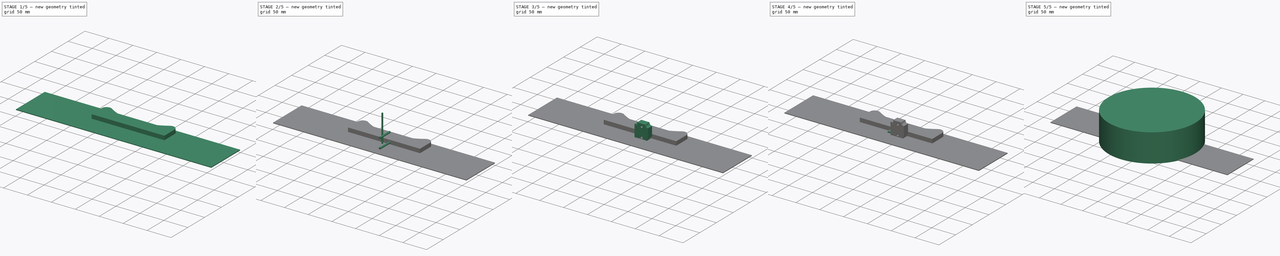
[diagram: build sequence overview — one tinted view per stage of 5, left to right]
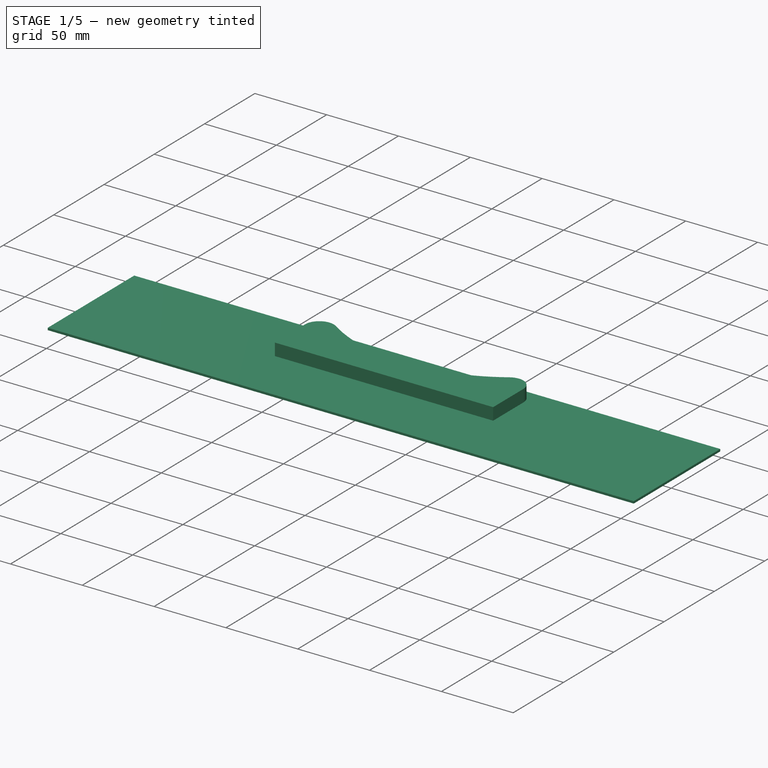
[diagram: stage 1 of 5 — iso view after this stage's code; geometry added in this stage tinted green]
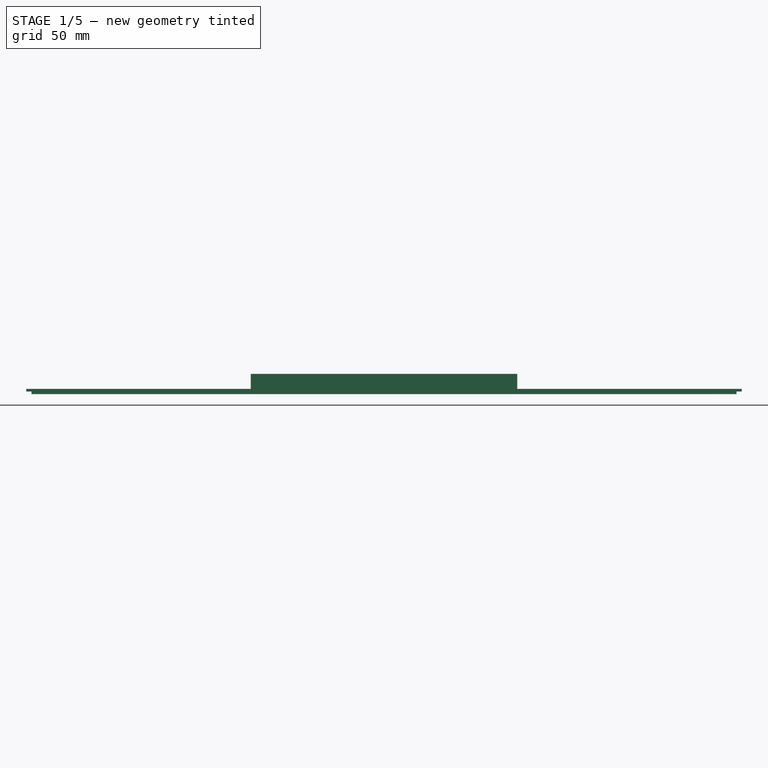
[diagram: stage 1 of 5 — front view after this stage's code; geometry added in this stage tinted green]
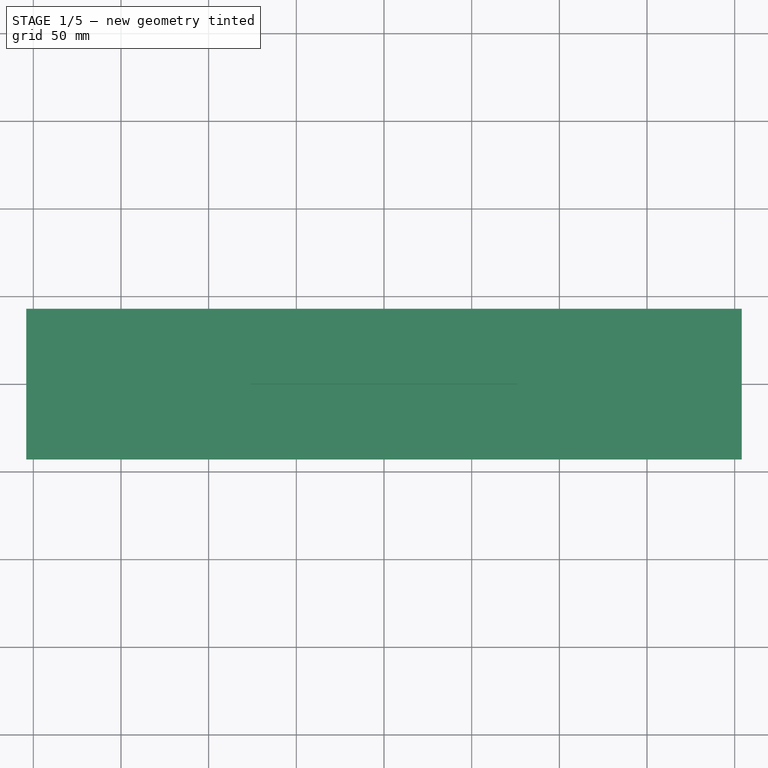
[diagram: stage 1 of 5 — top view after this stage's code; geometry added in this stage tinted green]
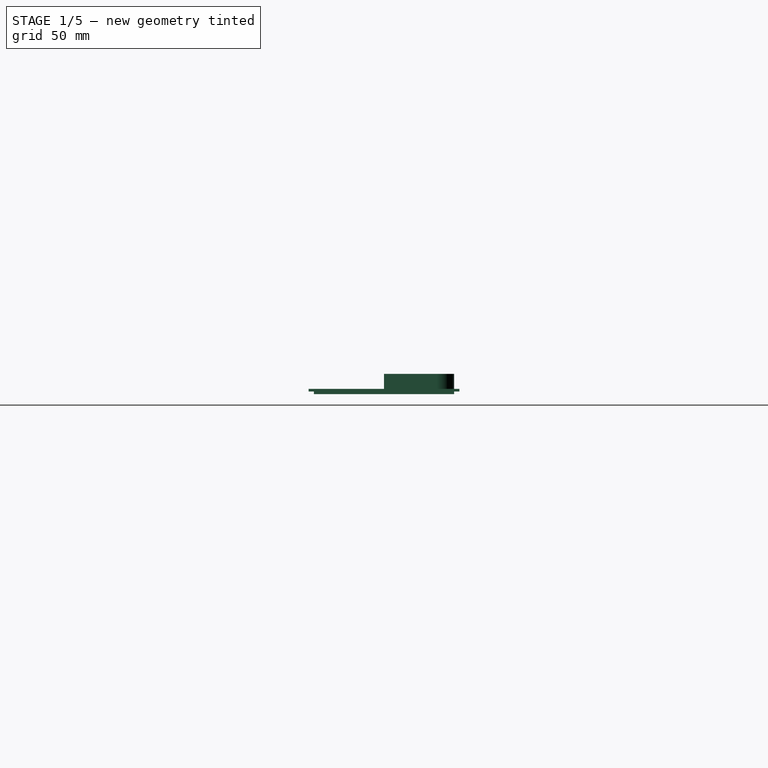
[diagram: stage 1 of 5 — right view after this stage's code; geometry added in this stage tinted green]
FCSTD DOCUMENT  (FreeCAD 0.22R37100 (Git))
Label: bizon_top2
License: All rights reserved
LicenseURL: http://en.wikipedia.org/wiki/All_rights_reserved
objects: Sketcher::SketchObject×8, PartDesign::Body×5, PartDesign::Pad×5, Part::FeaturePython×5, Part::Cylinder×3, PartDesign::AdditiveCylinder×1, PartDesign::Revolution×1, PartDesign::Mirrored×1, PartDesign::Groove×1, Part::Mirroring×1, Part::MultiFuse×1, PartDesign::Boolean×1, PartDesign::SubShapeBinder×1
note: 42 computed .brp shape members not serialized (recipe doc carries the construction recipe); baked Part::Feature solids carry a one-line shape summary decoded from their .brp

FEATURE [PartDesign::Body] Body002  label="filament_sensor"
  Group = -> [Sketch005,Pad001,Boolean]
  Origin = -> Origin002
  Tip = -> Boolean
FEATURE [Sketcher::SketchObject] Sketch007
  AttachmentSupport = -> [XY_Plane004]
  FullyConstrained = true
  MapMode = 5
  sketch-geometry (5):
    g0: LineSegment StartX=-201 StartY=-40 StartZ=0 EndX=201 EndY=-40 EndZ=0
    g1: LineSegment StartX=201 StartY=-40 StartZ=0 EndX=201 EndY=40 EndZ=0
    g2: LineSegment StartX=201 StartY=40 StartZ=0 EndX=-201 EndY=40 EndZ=0
    g3: LineSegment StartX=-201 StartY=40 StartZ=0 EndX=-201 EndY=-40 EndZ=0
    g4: GeomPoint X=0 Y=0 Z=0
  constraints (12):
    c: Coincident(g0,g1)
    c: Coincident(g1,g2)
    c: Coincident(g2,g3)
    c: Coincident(g3,g0)
    c: Horizontal(g0)
    c: Horizontal(g2)
    c: Vertical(g1)
    c: Vertical(g3)
    c: Symmetric(g2,g0,g4)
    c: Coincident(g4,g-1)
    c: DistanceX(g0,g1) = 402
    c: DistanceY(g0,g1) = 80
FEATURE [Sketcher::SketchObject] Sketch008
  AttachmentSupport = -> [XY_Plane004]
  ExternalGeometry = -> [Sketch007]
  FullyConstrained = true
  MapMode = 5
  sketch-geometry (5):
    g0: LineSegment StartX=-204 StartY=-43 StartZ=0 EndX=204 EndY=-43 EndZ=0
    g1: LineSegment StartX=204 StartY=-43 StartZ=0 EndX=204 EndY=43 EndZ=0
    g2: LineSegment StartX=204 StartY=43 StartZ=0 EndX=-204 EndY=43 EndZ=0
    g3: LineSegment StartX=-204 StartY=43 StartZ=0 EndX=-204 EndY=-43 EndZ=0
    g4: GeomPoint X=0 Y=0 Z=0
  constraints (12):
    c: Coincident(g0,g1)
    c: Coincident(g1,g2)
    c: Coincident(g2,g3)
    c: Coincident(g3,g0)
    c: Horizontal(g0)
    c: Horizontal(g2)
    c: Vertical(g1)
    c: Vertical(g3)
    c: Symmetric(g2,g0,g4)
    c: Coincident(g4,g-1)
    c: DistanceX(g-3,g1) = 3
    c: DistanceY(g-3,g1) = 3
FEATURE [PartDesign::Pad] Pad002
  Direction = (0,0,1)
  Length = 1.5
  Length2 = 10
  Profile = -> Sketch007
  ReferenceAxis = -> Sketch007 [N_Axis]
  Reversed = true
  Suppressed = false
  Type = 0
FEATURE [PartDesign::Pad] Pad003
  BaseFeature = -> Pad002
  Direction = (0,0,1)
  Length = 1.5
  Length2 = 10
  Profile = -> Sketch008
  ReferenceAxis = -> Sketch008 [N_Axis]
  Suppressed = false
  Type = 0
FEATURE [PartDesign::Body] Body004
  Group = -> [Sketch007,Sketch008,Pad002,Pad003]
  Origin = -> Origin004
  Tip = -> Pad003
FEATURE [PartDesign::SubShapeBinder] Binder
  BindCopyOnChange = 0
  BindMode = 0
  ClaimChildren = false
  Context = -> Body003 [Binder.]
  Fuse = false
  MakeFace = true
  OffsetFill = false
  OffsetIntersection = false
  OffsetJoinType = 0
  OffsetOpenResult = false
  PartialLoad = false
  Relative = true
  Support = -> [Connect]
  _Version = 2
FEATURE [PartDesign::Pad] Pad004
  Direction = (0,0,1)
  Length = 10
  Length2 = 10
  Profile = -> Binder
  Suppressed = false
  Type = 0
FEATURE [PartDesign::Body] Body003
  Group = -> [Binder,Pad004]
  Origin = -> Origin003
  Tip = -> Pad004
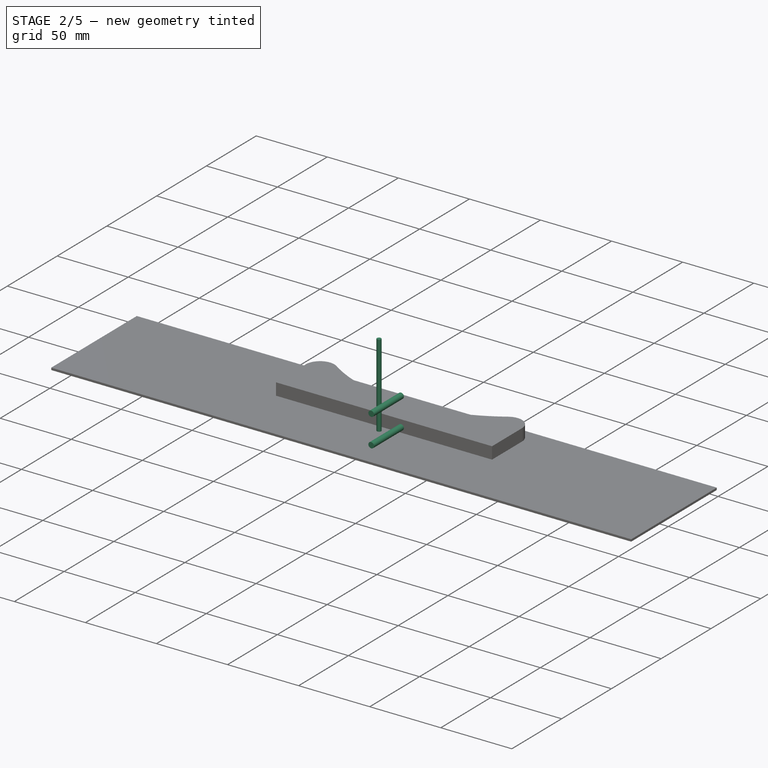
[diagram: stage 2 of 5 — iso view after this stage's code; geometry added in this stage tinted green]
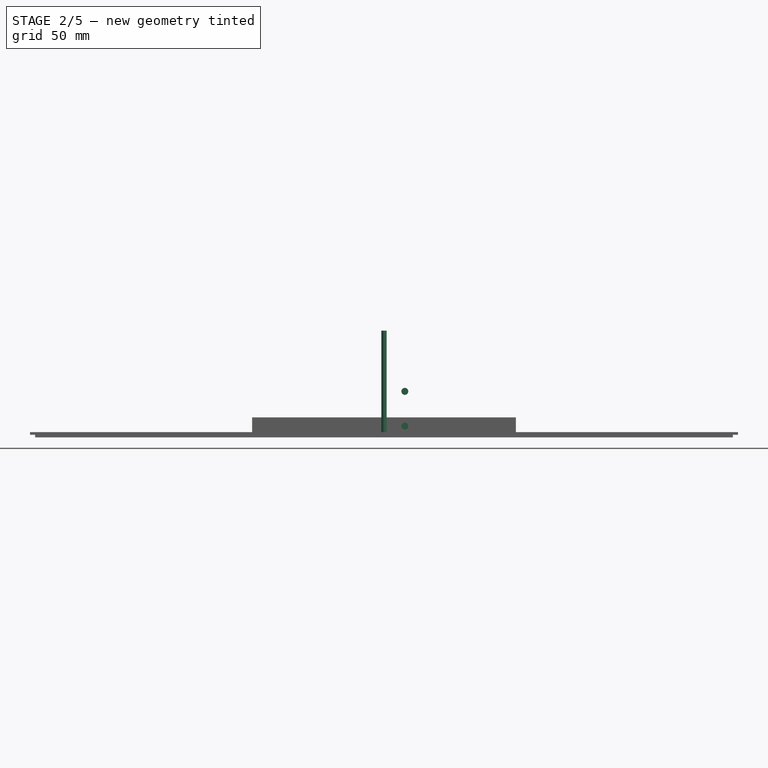
[diagram: stage 2 of 5 — front view after this stage's code; geometry added in this stage tinted green]
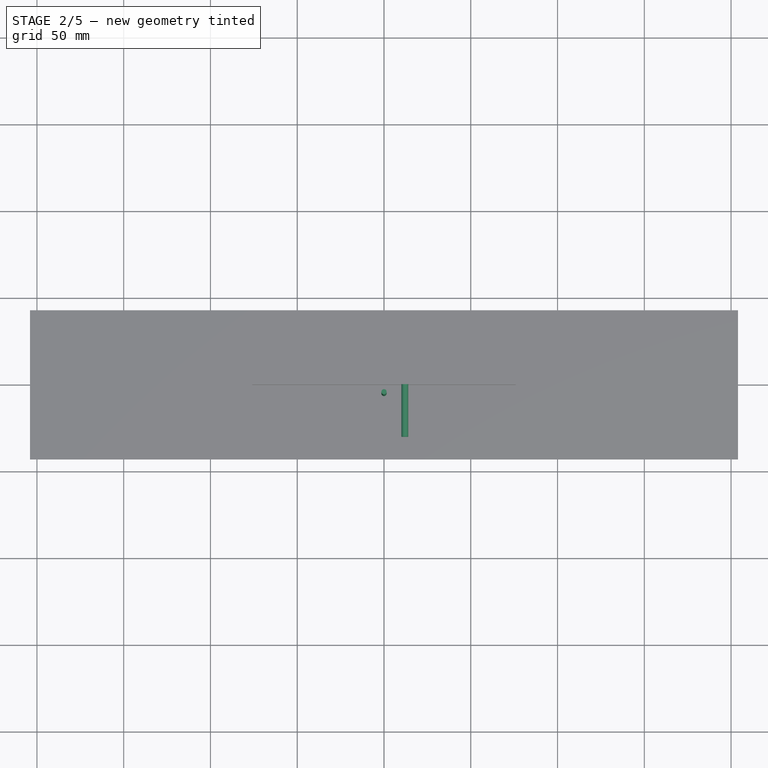
[diagram: stage 2 of 5 — top view after this stage's code; geometry added in this stage tinted green]
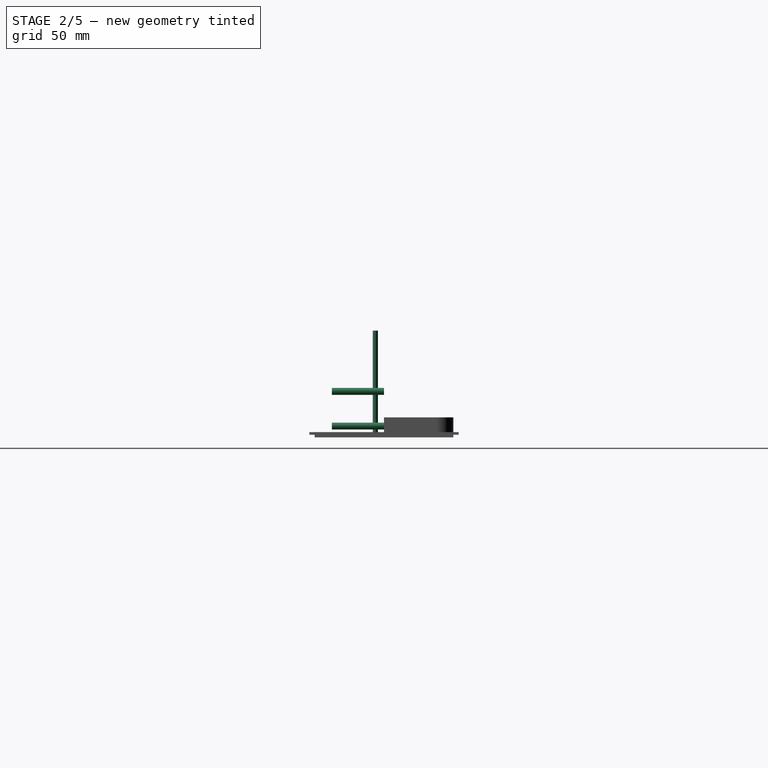
[diagram: stage 2 of 5 — right view after this stage's code; geometry added in this stage tinted green]
FEATURE [Part::FeaturePython] LinearArray  # WARN: FeaturePython — macro-defined, semantics opaque (R4)
  Alignment = 0
  CellStart = A1
  Count = 2
  Dir = (1,0,0)
  DirIsDriven = true
  DistributionLaw = 0
  DrivenProperty = 1
  EndInclusive = true
  ExposePlacement = false
  GeneratorMode = 0
  MarkerShape = 1
  MarkerSize = 0
  NumElements = 2
  OrientMode = 1
  Placement = pos=(12,0,5) rot=(0.57735,-0.57735,0.57735;2.0944rad)
  Point = (0,0,0)
  PointIsDriven = true
  Reverse = false
  SpanEnd = 20
  SpanStart = 0
  Step = 20
  Type = lattice2LinearArray.LinearArray
  VSGVersion = 1
  Values = 0.0 | 20.0
  ValuesSource = 2
  isLattice = 1
FEATURE [Part::Cylinder] Cylinder002
  Angle = 360
  AttacherType = Attacher::AttachEngine3D
  FirstAngle = 0
  Height = 30
  Radius = 2
  SecondAngle = 0
FEATURE [Part::FeaturePython] Populate001  label="Populate LinearArray with Cylinder002"  # WARN: FeaturePython — macro-defined, semantics opaque (R4)
  Copying = 0
  ExposePlacement = false
  MarkerShape = 1
  MarkerSize = 0
  NumElements = 0
  Object = -> Cylinder002
  OutputCompounding = 1
  PlacementsTo = -> LinearArray
  Referencing = 0
  Type = lattice2PopulateCopies.LatticePopulateCopies
  isLattice = 0
FEATURE [Part::Cylinder] Cylinder003
  Angle = 360
  AttacherType = Attacher::AttachEngine3D
  FirstAngle = 0
  Height = 60
  Placement = pos=(0,-5,0) rot=(0,0,1;0rad)
  Radius = 1.5
  SecondAngle = 0
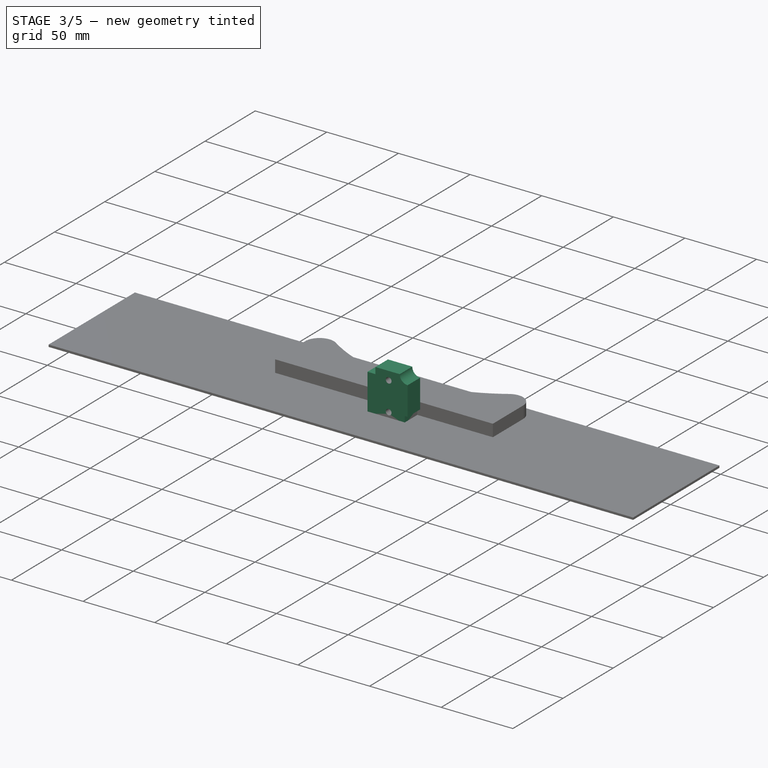
[diagram: stage 3 of 5 — iso view after this stage's code; geometry added in this stage tinted green]
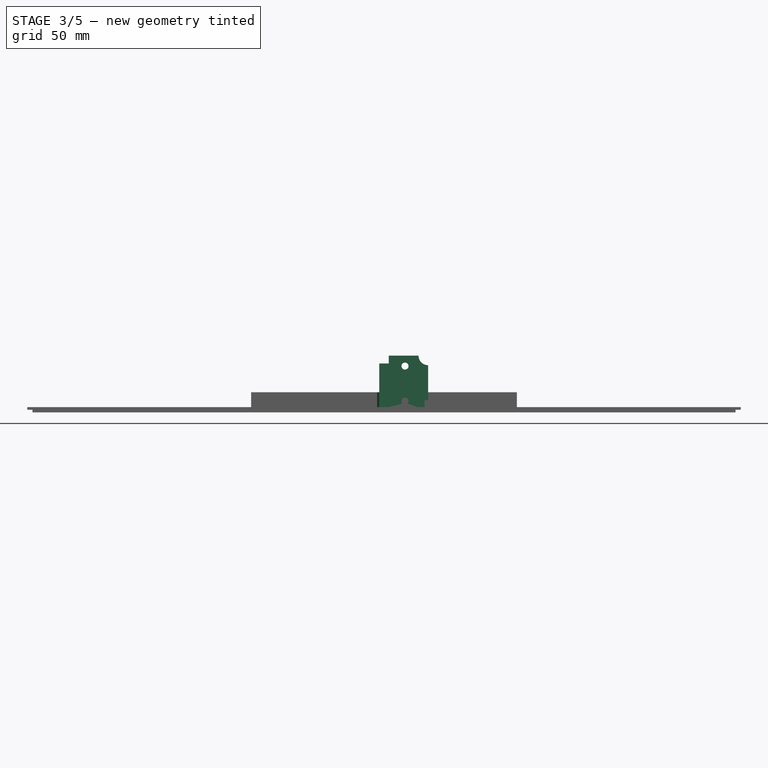
[diagram: stage 3 of 5 — front view after this stage's code; geometry added in this stage tinted green]
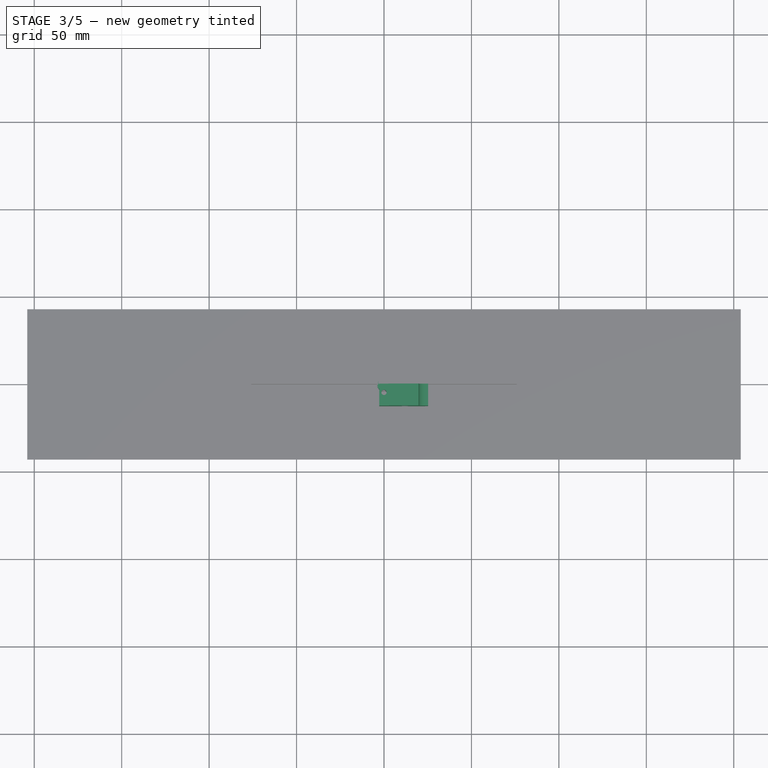
[diagram: stage 3 of 5 — top view after this stage's code; geometry added in this stage tinted green]
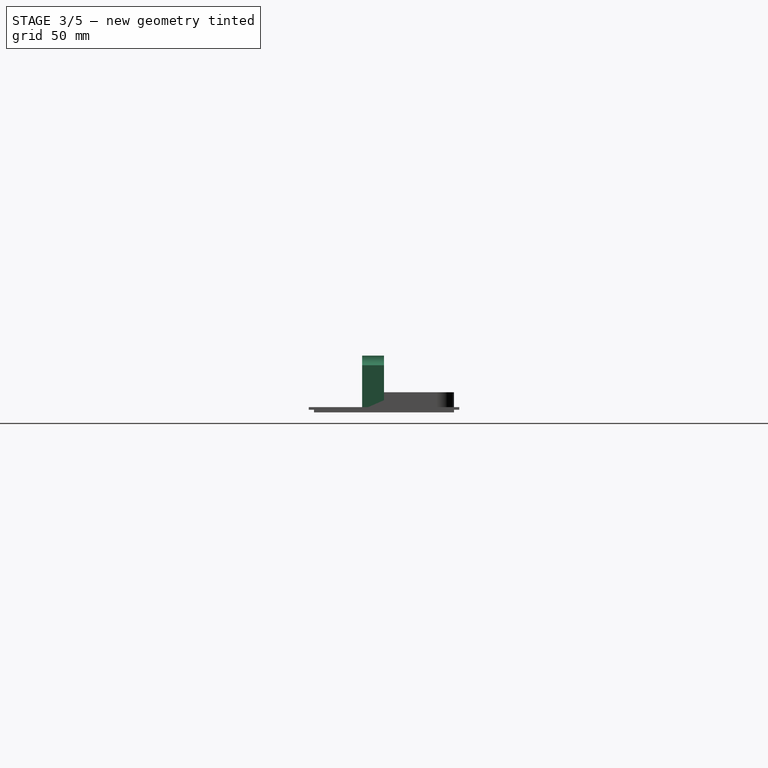
[diagram: stage 3 of 5 — right view after this stage's code; geometry added in this stage tinted green]
FEATURE [PartDesign::Body] Body001
  Group = -> [Sketch,Sketch001,Revolution,Sketch002,Pad,Mirrored,Groove]
  Origin = -> Origin001
  Tip = -> Groove
FEATURE [Part::FeaturePython] Placment  # WARN: FeaturePython — macro-defined, semantics opaque (R4)
  AttacherType = Attacher::AttachEngine3D
  ExposePlacement = true
  MarkerShape = 1
  MarkerSize = 20
  NumElements = 1
  Placement = pos=(66,30,0) rot=(0,0,1;0rad)
  Type = lattice2AttachablePlacement.AttachablePlacement
  isLattice = 1
FEATURE [Sketcher::SketchObject] Sketch003
  ExternalGeometry = -> [Placment]
  FullyConstrained = true
  sketch-geometry (6):
    g0: ArcOfCircle CenterX=66 CenterY=30 CenterZ=0 NormalX=0 NormalY=0 NormalZ=1 AngleXU=0 Radius=10 StartAngle=0 EndAngle=2.15927
    g1: ArcOfCircle CenterX=0 CenterY=128.9 CenterZ=0 NormalX=0 NormalY=0 NormalZ=1 AngleXU=0 Radius=108.9 StartAngle=4.71239 EndAngle=5.30086
    g2: LineSegment StartX=76 StartY=30 StartZ=0 EndX=76 EndY=0 EndZ=0
    g3: LineSegment StartX=76 StartY=0 StartZ=0 EndX=0 EndY=0 EndZ=0
    g4: LineSegment StartX=66 StartY=40 StartZ=0 EndX=66 EndY=20 EndZ=0
    g5: LineSegment StartX=66 StartY=20 StartZ=0 EndX=66 EndY=0 EndZ=0
  constraints (18):
    c: Coincident(g0,g-3)
    c: PointOnObject(g1,g-2)
    c: PointOnObject(g1,g-2)
    c: Tangent(g0,g2) = 1.5708
    c: Coincident(g2,g3)
    c: Coincident(g3,g-1)
    c: Horizontal(g3)
    c: Vertical(g2)
    c: Tangent(g1,g0) = 1.5708
    c: Radius(g0) = 10
    c: PointOnObject(g4,g0)
    c: Vertical(g4)
    c: Coincident(g4,g5)
    c: PointOnObject(g5,g-1)
    c: Vertical(g5)
    c: Equal(g5,g4)
    c: Vertical(g4,g0)
    c: Horizontal(g1,g4)
FEATURE [Part::Mirroring] Part__Mirroring  label="Sketch003 (Mirror #1)"
  Base = (0,0,0)
  Normal = (1,0,0)
  Source = -> Sketch003
FEATURE [Part::FeaturePython] Connect  # WARN: FeaturePython — macro-defined, semantics opaque (R4)
  Objects = -> [Sketch003,Part__Mirroring]
  Tolerance = 0
FEATURE [Part::Cylinder] Cylinder001
  Angle = 360
  AttacherType = Attacher::AttachEngine3D
  FirstAngle = 0
  Height = 10
  Radius = 4
  SecondAngle = 0
FEATURE [Sketcher::SketchObject] Sketch004
  ExternalGeometry = -> [Sketch003]
  FullyConstrained = false
  sketch-geometry (11):
    g0: ArcOfCircle CenterX=0 CenterY=128.9 CenterZ=0 NormalX=0 NormalY=0 NormalZ=1 AngleXU=0 Radius=112.9 StartAngle=4.74783 EndAngle=5.20403
    g1: LineSegment StartX=4 StartY=16.0709 StartZ=0 EndX=4 EndY=4 EndZ=0
    g2: LineSegment StartX=4 StartY=4 StartZ=0 EndX=66 EndY=4 EndZ=0
    g3: LineSegment StartX=0 StartY=4 StartZ=0 EndX=4 EndY=4 EndZ=0
    g4: LineSegment StartX=4 StartY=4 StartZ=0 EndX=4 EndY=0 EndZ=0
    g5: LineSegment StartX=4 StartY=16.0709 StartZ=0 EndX=3.85828 EndY=20.0684 EndZ=0
    g6: ArcOfCircle CenterX=66 CenterY=30 CenterZ=0 NormalX=0 NormalY=0 NormalZ=1 AngleXU=0 Radius=10 StartAngle=2.15927 EndAngle=2.58794
    g7: LineSegment StartX=66 StartY=4 StartZ=0 EndX=66 EndY=20 EndZ=0
    g8: ArcOfCircle CenterX=66 CenterY=30 CenterZ=0 NormalX=0 NormalY=0 NormalZ=1 AngleXU=0 Radius=10 StartAngle=3.34222 EndAngle=4.71239
    g9: ArcOfCircle CenterX=66 CenterY=30 CenterZ=0 NormalX=0 NormalY=0 NormalZ=1 AngleXU=0 Radius=10 StartAngle=4.71239 EndAngle=5.67777
    g10: ArcOfCircle CenterX=54.2407 CenterY=27.6086 CenterZ=0 NormalX=0 NormalY=0 NormalZ=1 AngleXU=0 Radius=2 StartAngle=0.20063 EndAngle=2.06243
  constraints (29):
    c: Coincident(g6,g-3)
    c: Coincident(g6,g-3)
    c: Coincident(g0,g-4)
    c: Coincident(g1,g2)
    c: Horizontal(g2)
    c: Vertical(g1)
    c: PointOnObject(g3,g-2)
    c: Coincident(g3,g1)
    c: Coincident(g3,g4)
    c: PointOnObject(g4,g-1)
    c: Vertical(g4)
    c: Perpendicular(g5,g-4) = 4.71239
    c: Coincident(g5,g0)
    c: Equal(g5,g3)
    c: Equal(g3,g4)
    c: Horizontal(g3)
    c: Coincident(g1,g0)
    c: Distance(g4) = 4
    c: Coincident(g6,g8)
    c: Coincident(g7,g2)
    c: Vertical(g7)
    c: Coincident(g8,g9)
    c: Coincident(g8,g9)
    c: Coincident(g7,g8)
    c: Perpendicular(g9,g7)
    c: Tangent(g8,g10) = 1.5708
    c: Tangent(g0,g10) = 1.5708
    c: Radius(g10) = 2
    c: Equal(g8,g-3)
FEATURE [Sketcher::SketchObject] Sketch005
  AttachmentSupport = -> [XZ_Plane002]
  FullyConstrained = true
  MapMode = 5
  Placement = pos=(0,0,0) rot=(1,0,0;1.5708rad)
  sketch-geometry (9):
    g0: LineSegment StartX=-2.75 StartY=0 StartZ=0 EndX=23.25 EndY=0 EndZ=0
    g1: LineSegment StartX=23.25 StartY=0 StartZ=0 EndX=23.25 EndY=5.5 EndZ=0
    g2: LineSegment StartX=23.25 StartY=5.5 StartZ=0 EndX=25.25 EndY=5.5 EndZ=0
    g3: LineSegment StartX=25.25 StartY=5.5 StartZ=0 EndX=25.25 EndY=25.5 EndZ=0
    g4: LineSegment StartX=19.75 StartY=31 StartZ=0 EndX=2.75 EndY=31 EndZ=0
    g5: LineSegment StartX=2.75 StartY=31 StartZ=0 EndX=2.75 EndY=26.5 EndZ=0
    g6: LineSegment StartX=2.75 StartY=26.5 StartZ=0 EndX=-2.75 EndY=26.5 EndZ=0
    g7: LineSegment StartX=-2.75 StartY=26.5 StartZ=0 EndX=-2.75 EndY=0 EndZ=0
    g8: ArcOfCircle CenterX=25.25 CenterY=31 CenterZ=0 NormalX=0 NormalY=0 NormalZ=1 AngleXU=0 Radius=5.5 StartAngle=3.14159 EndAngle=4.71239
  constraints (27):
    c: PointOnObject(g0,g-1)
    c: PointOnObject(g0,g-1)
    c: Coincident(g0,g1)
    c: Vertical(g1)
    c: Coincident(g1,g2)
    c: Horizontal(g2)
    c: Coincident(g2,g3)
    c: Vertical(g3)
    c: Horizontal(g4)
    c: Coincident(g4,g5)
    c: Vertical(g5)
    c: Coincident(g5,g6)
    c: Coincident(g6,g7)
    c: Coincident(g7,g0)
    c: Vertical(g7)
    c: DistanceY(g4) = 31
    c: DistanceX(g0,g2) = 28
    c: DistanceX(g6,g6) = 5.5
    c: DistanceY(g5,g5) = 4.5
    c: Symmetric(g6,g5,g-2)
    c: DistanceY(g1) = 5.5
    c: DistanceX(g2,g2) = 2
    c: Coincident(g8,g3)
    c: Coincident(g8,g4)
    c: Perpendicular(g8,g4)
    c: Perpendicular(g8,g3)
    c: Radius(g8) = 5.5
FEATURE [PartDesign::Pad] Pad001
  Direction = (0,-1,2e-16)
  Length = 12.5
  Length2 = 10
  Placement = pos=(0,0,0) rot=(1,0,0;1.5708rad)
  Profile = -> Sketch005
  ReferenceAxis = -> Sketch005 [N_Axis]
  Suppressed = false
  Type = 0
FEATURE [Part::MultiFuse] Fusion
  Shapes = -> [Populate001,Cylinder003]
FEATURE [PartDesign::Boolean] Boolean
  BaseFeature = -> Pad001
  Group = -> [Fusion]
  Suppressed = false
  Type = 1
  UsePlacement = true
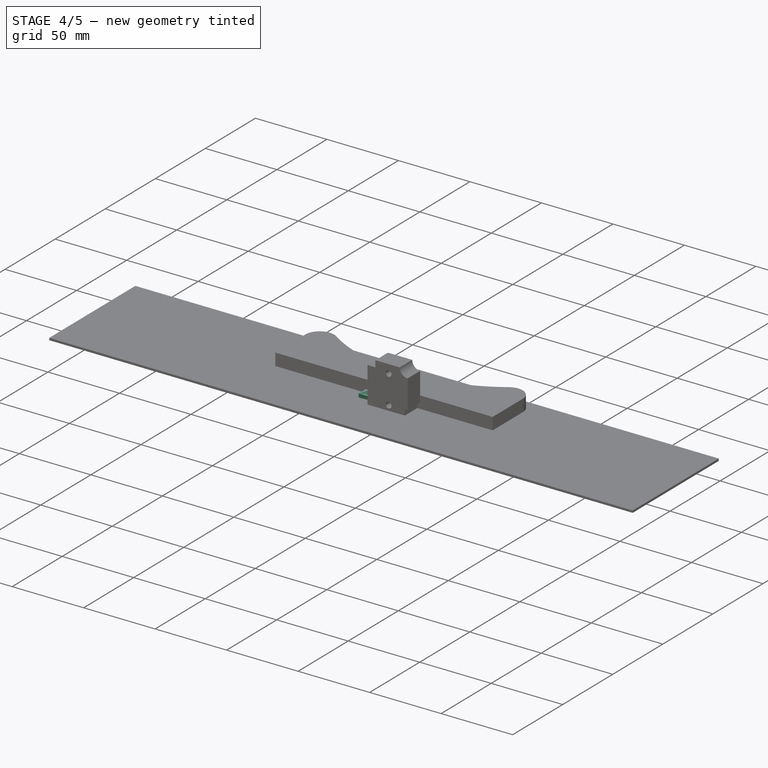
[diagram: stage 4 of 5 — iso view after this stage's code; geometry added in this stage tinted green]
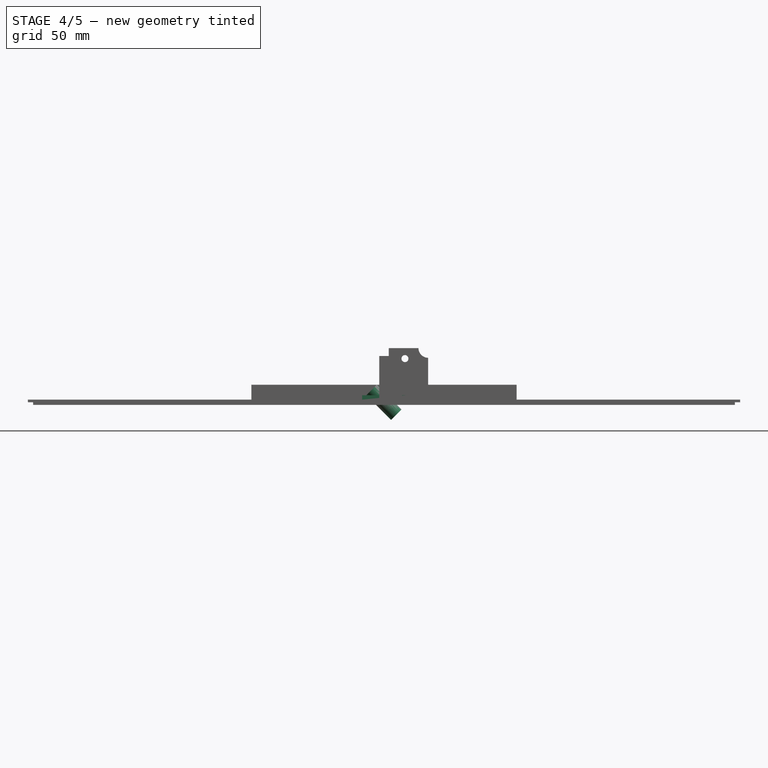
[diagram: stage 4 of 5 — front view after this stage's code; geometry added in this stage tinted green]
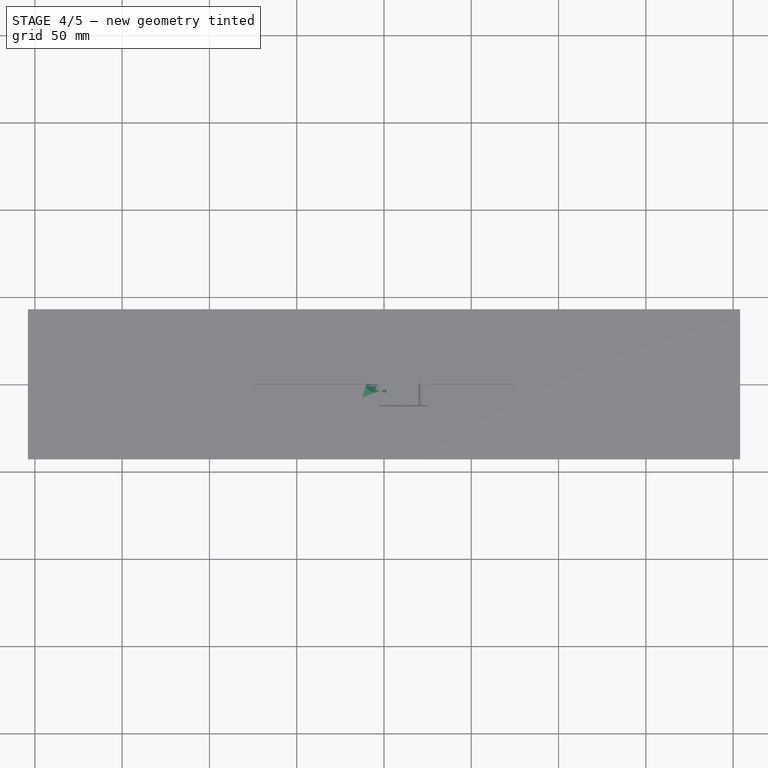
[diagram: stage 4 of 5 — top view after this stage's code; geometry added in this stage tinted green]
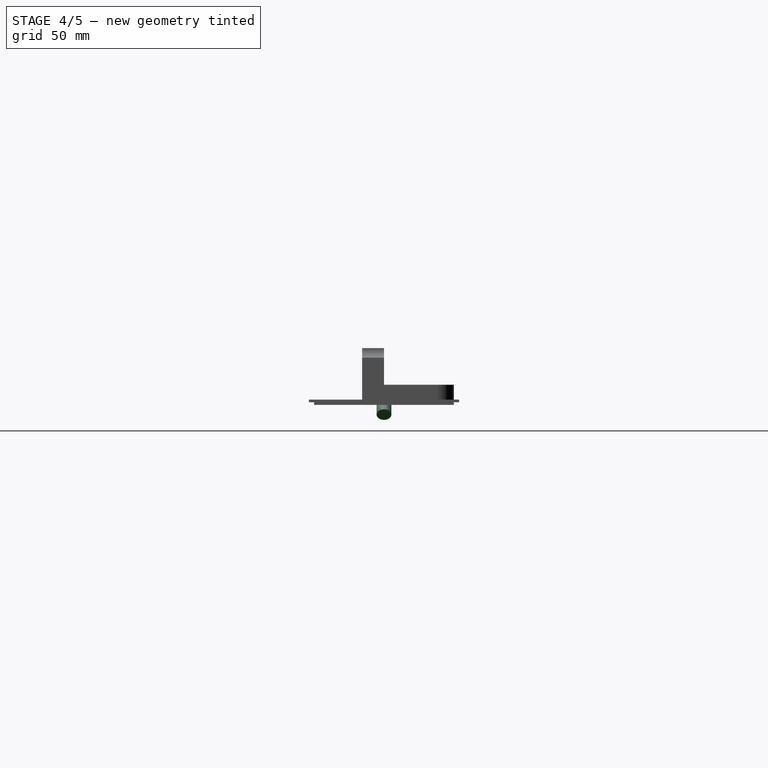
[diagram: stage 4 of 5 — right view after this stage's code; geometry added in this stage tinted green]
FEATURE [PartDesign::Body] Body
  Group = -> [Cylinder]
  Origin = -> Origin
  Placement = pos=(0,110,0) rot=(0,0,1;0rad)
  Tip = -> Cylinder
FEATURE [Sketcher::SketchObject] Sketch
  AttachmentOffset = pos=(0,0,0) rot=(0,0,1;0.785398rad)
  AttachmentSupport = -> [XZ_Plane001]
  FullyConstrained = true
  MapMode = 5
  Placement = pos=(0,0,0) rot=(0.862856,-0.357407,0.357407;1.71777rad)
  sketch-geometry (6):
    g0: LineSegment StartX=0 StartY=-10 StartZ=0 EndX=2.25 EndY=-10 EndZ=0
    g1: LineSegment StartX=2.25 StartY=-10 StartZ=0 EndX=2.25 EndY=0 EndZ=0
    g2: LineSegment StartX=2.25 StartY=0 StartZ=0 EndX=1.125 EndY=0 EndZ=0
    g3: LineSegment StartX=1.125 StartY=0 StartZ=0 EndX=1.125 EndY=10 EndZ=0
    g4: LineSegment StartX=1.125 StartY=10 StartZ=0 EndX=0 EndY=10 EndZ=0
    g5: LineSegment StartX=0 StartY=10 StartZ=0 EndX=0 EndY=-10 EndZ=0
  constraints (17):
    c: PointOnObject(g0,g-2)
    c: Horizontal(g0)
    c: Coincident(g0,g1)
    c: Vertical(g1)
    c: Coincident(g1,g2)
    c: Horizontal(g2)
    c: Coincident(g2,g3)
    c: Vertical(g3)
    c: Coincident(g3,g4)
    c: Horizontal(g4)
    c: Coincident(g4,g5)
    c: Coincident(g5,g0)
    c: DistanceX(g0,g0) = 2.25
    c: DistanceX(g2) = 1.125
    c: PointOnObject(g2,g-1)
    c: DistanceY(g5,g5) = 20
    c: Symmetric(g0,g4,g-1)
FEATURE [Sketcher::SketchObject] Sketch001
  AttachmentOffset = pos=(0,0,0) rot=(0,0,1;0.785398rad)
  AttachmentSupport = -> [XZ_Plane001]
  ExternalGeometry = -> [Sketch]
  FullyConstrained = true
  MapMode = 5
  Placement = pos=(0,0,0) rot=(0.862856,-0.357407,0.357407;1.71777rad)
  expr: AttachmentOffset = <<Sketch>>.AttachmentOffset
  sketch-geometry (4):
    g0: LineSegment StartX=0 StartY=-10 StartZ=0 EndX=4.25 EndY=-10 EndZ=0
    g1: LineSegment StartX=4.25 StartY=-10 StartZ=0 EndX=4.25 EndY=10 EndZ=0
    g2: LineSegment StartX=4.25 StartY=10 StartZ=0 EndX=0 EndY=10 EndZ=0
    g3: LineSegment StartX=0 StartY=10 StartZ=0 EndX=0 EndY=-10 EndZ=0
  constraints (10):
    c: Coincident(g0,g1)
    c: Coincident(g1,g2)
    c: Coincident(g2,g3)
    c: Coincident(g3,g0)
    c: Horizontal(g0)
    c: Horizontal(g2)
    c: Vertical(g1)
    c: Coincident(g0,g-3)
    c: Coincident(g2,g-4)
    c: DistanceX(g-3,g0) = 2
FEATURE [PartDesign::Revolution] Revolution
  Angle = 360
  Angle2 = 60
  Axis = (-0.707107,1e-16,0.707107)
  Base = (0,0,0)
  Placement = pos=(0,0,0) rot=(1,0,0;1.5708rad)
  Profile = -> Sketch001
  ReferenceAxis = -> Sketch001 [V_Axis]
  Reversed = true
  Suppressed = false
  Type = 0
FEATURE [Sketcher::SketchObject] Sketch002
  AttachmentSupport = -> [XZ_Plane001]
  FullyConstrained = true
  MapMode = 5
  Placement = pos=(0,0,0) rot=(1,0,0;1.5708rad)
  sketch-geometry (4):
    g0: LineSegment StartX=-12.5 StartY=1.5 StartZ=0 EndX=12.5 EndY=1.5 EndZ=0
    g1: LineSegment StartX=12.5 StartY=1.5 StartZ=0 EndX=12.5 EndY=4 EndZ=0
    g2: LineSegment StartX=12.5 StartY=4 StartZ=0 EndX=-12.5 EndY=4 EndZ=0
    g3: LineSegment StartX=-12.5 StartY=4 StartZ=0 EndX=-12.5 EndY=1.5 EndZ=0
  constraints (11):
    c: Coincident(g0,g1)
    c: Coincident(g1,g2)
    c: Coincident(g2,g3)
    c: Coincident(g3,g0)
    c: Horizontal(g2)
    c: Vertical(g1)
    c: Vertical(g3)
    c: Symmetric(g0,g0,g-2)
    c: DistanceY(g0) = 1.5
    c: DistanceY(g1,g1) = 2.5
    c: DistanceX(g0,g0) = 25
FEATURE [PartDesign::Pad] Pad
  BaseFeature = -> Revolution
  Direction = (0,-1,2e-16)
  Length = 15
  Length2 = 10
  Midplane = true
  Placement = pos=(0,0,0) rot=(1,0,0;1.5708rad)
  Profile = -> Sketch002
  ReferenceAxis = -> Sketch002 [N_Axis]
  Suppressed = false
  Type = 0
FEATURE [Part::FeaturePython] Populate  label="Populate Placment with Cylinder001"  # WARN: FeaturePython — macro-defined, semantics opaque (R4)
  Copying = 0
  ExposePlacement = false
  MarkerShape = 1
  MarkerSize = 0
  NumElements = 0
  Object = -> Cylinder001
  OutputCompounding = 2
  PlacementsTo = -> Placment
  Referencing = 0
  Type = lattice2PopulateCopies.LatticePopulateCopies
  isLattice = 0
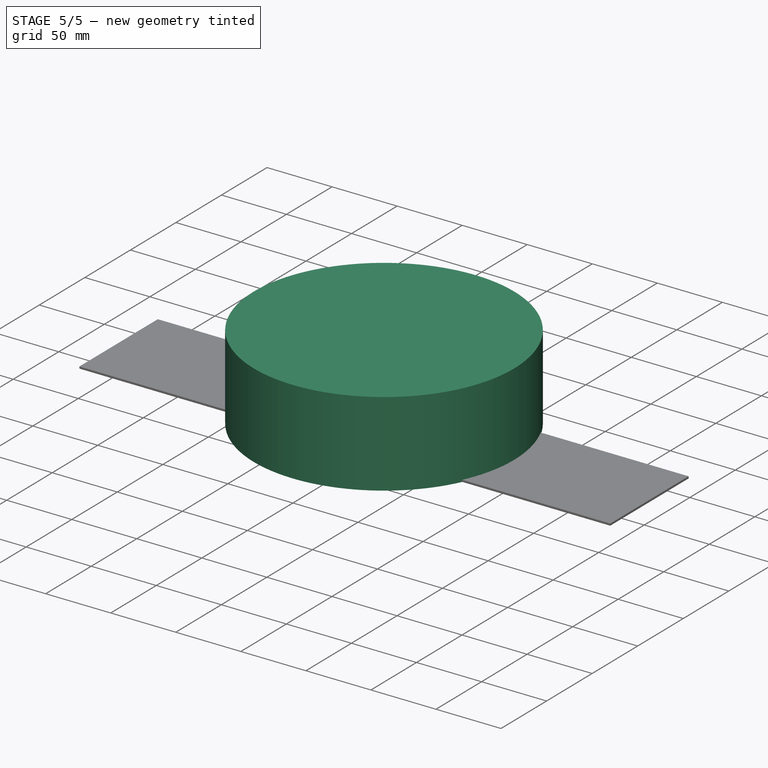
[diagram: stage 5 of 5 — iso view after this stage's code; geometry added in this stage tinted green]
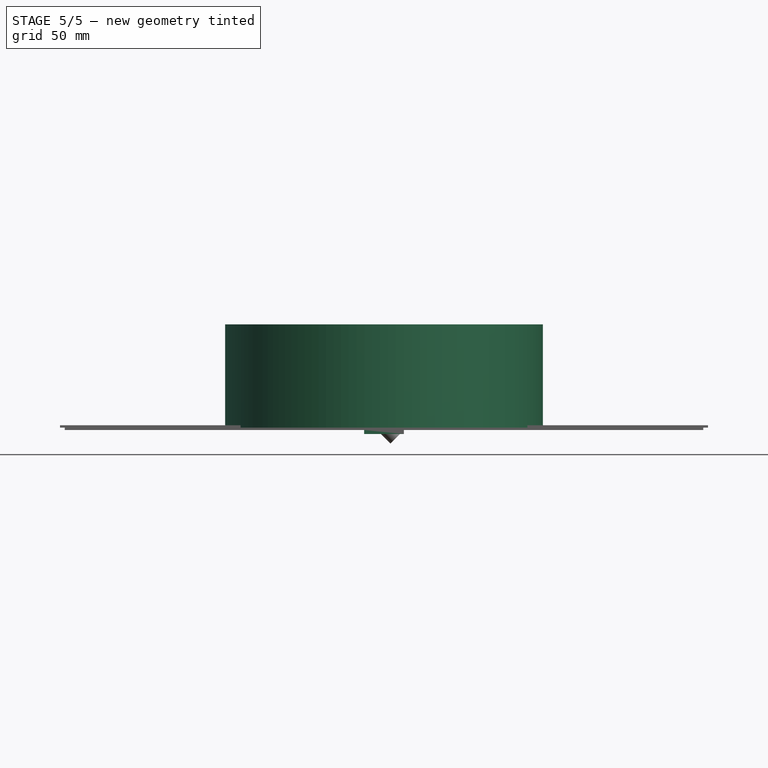
[diagram: stage 5 of 5 — front view after this stage's code; geometry added in this stage tinted green]
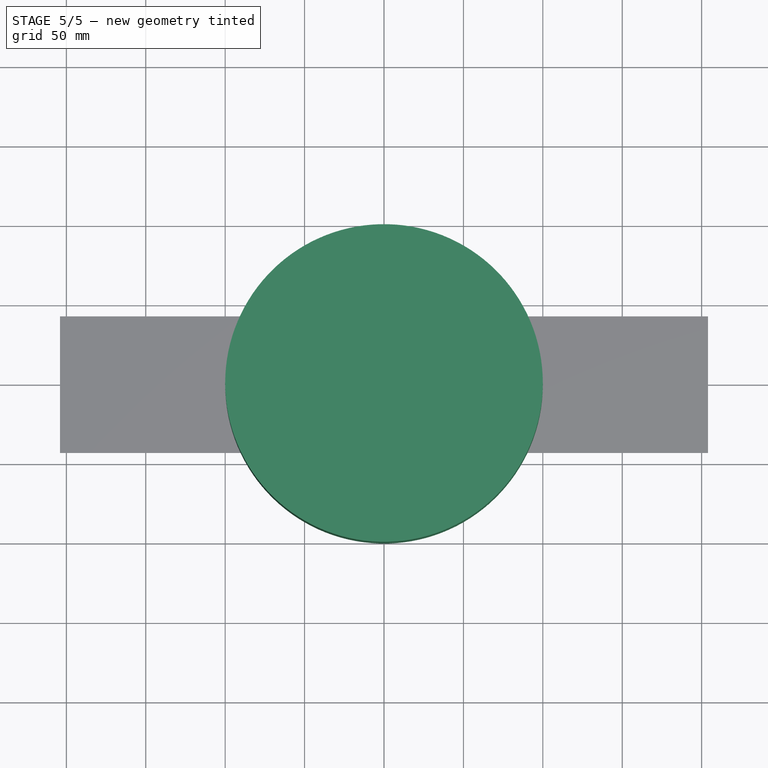
[diagram: stage 5 of 5 — top view after this stage's code; geometry added in this stage tinted green]
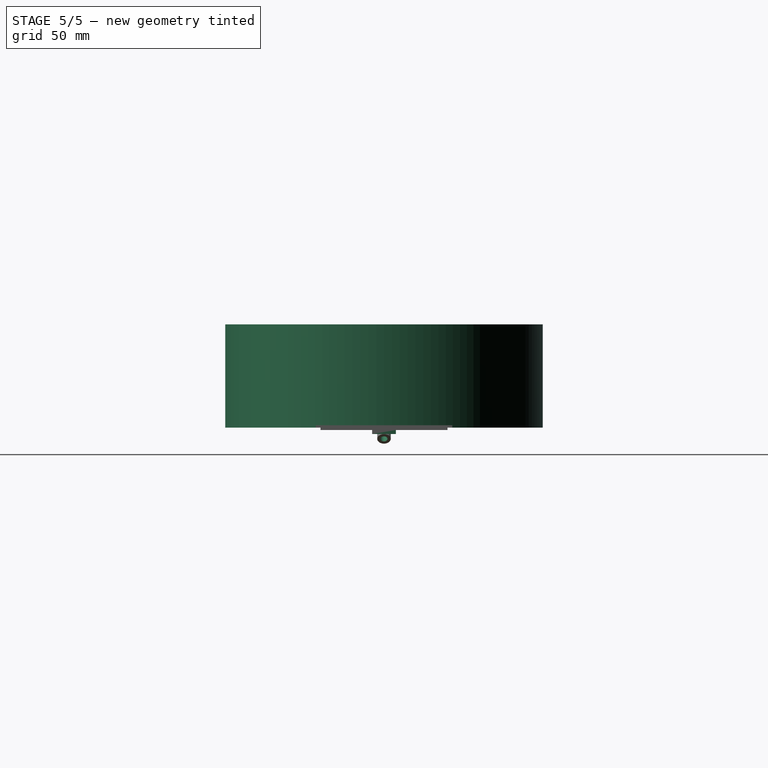
[diagram: stage 5 of 5 — right view after this stage's code; geometry added in this stage tinted green]
FEATURE [PartDesign::AdditiveCylinder] Cylinder
  Angle = 360
  AttacherType = Attacher::AttachEngine3D
  AttachmentSupport = -> [XY_Plane]
  FirstAngle = 0
  Height = 65
  MapMode = 5
  Radius = 100
  SecondAngle = 0
  Suppressed = false
FEATURE [PartDesign::Mirrored] Mirrored
  BaseFeature = -> Pad
  MirrorPlane = -> Sketch002 [H_Axis]
  Originals = -> [Pad]
  Placement = pos=(0,0,0) rot=(1,0,0;1.5708rad)
  Suppressed = false
FEATURE [PartDesign::Groove] Groove
  Angle = 360
  Angle2 = 60
  Axis = (-0.707107,1e-16,0.707107)
  Base = (0,0,0)
  BaseFeature = -> Mirrored
  Placement = pos=(0,0,0) rot=(1,0,0;1.5708rad)
  Profile = -> Sketch
  ReferenceAxis = -> Sketch [V_Axis]
  Suppressed = false
  Type = 0
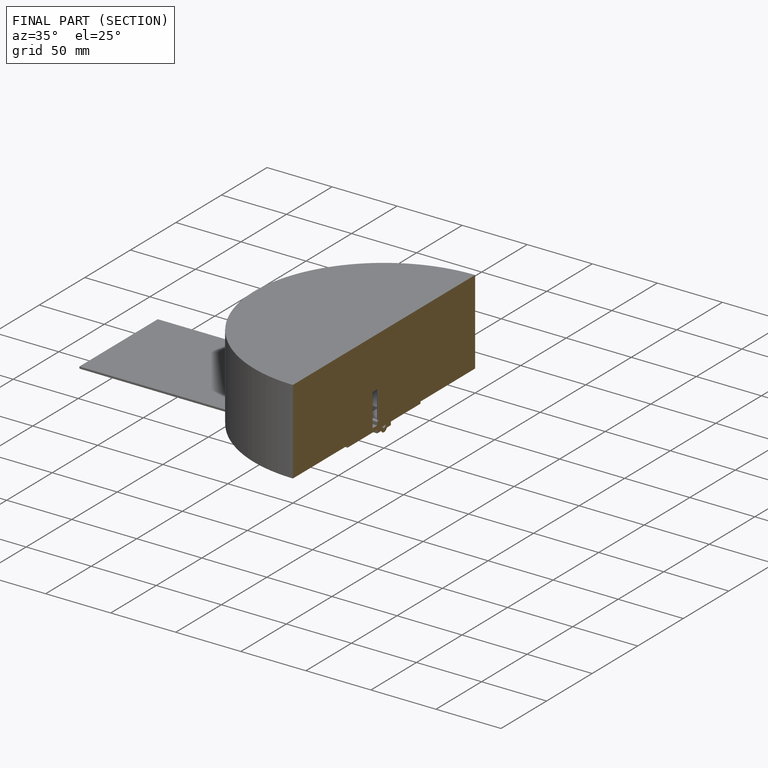
[diagram: finished part — half-section view (interior)]
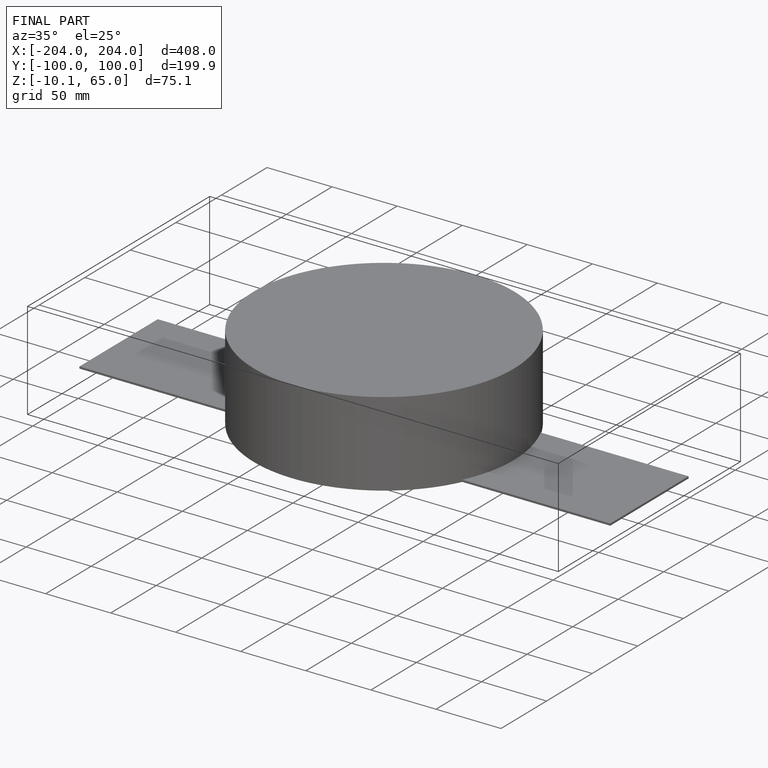
[diagram: finished part — iso view with bounding-box wireframe]
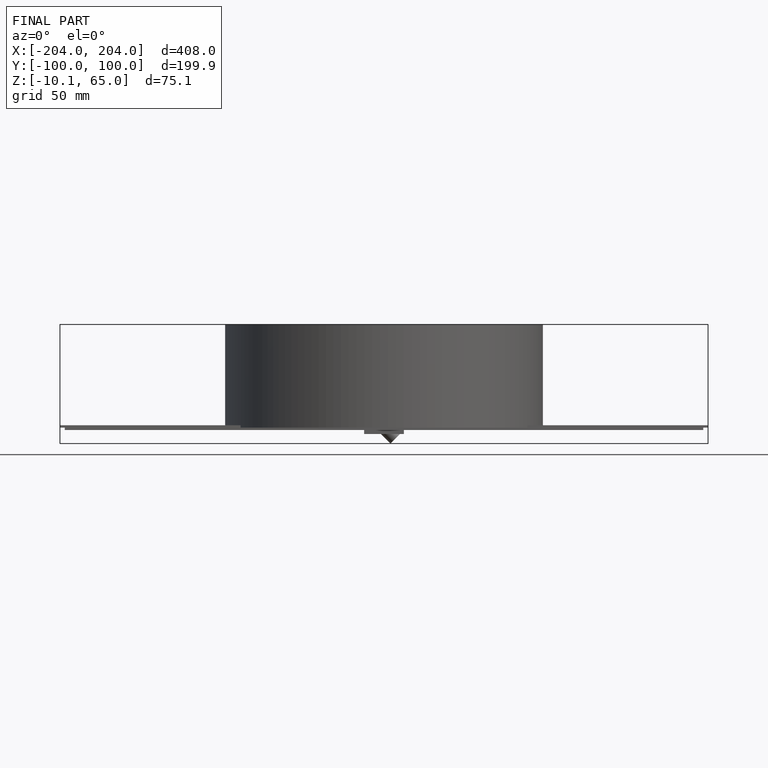
[diagram: finished part — front view with bounding-box wireframe]
